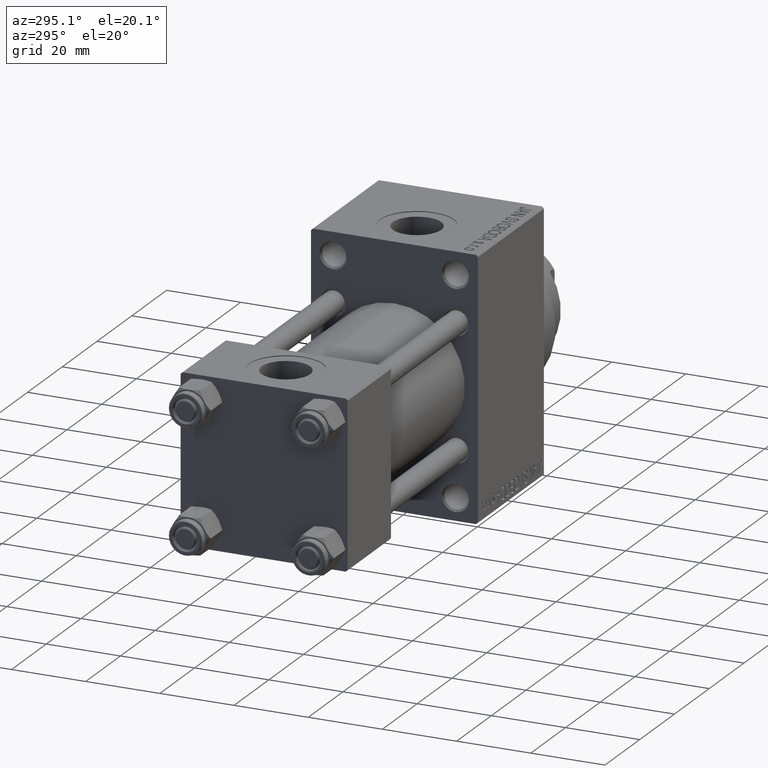
[diagram: clean part render]
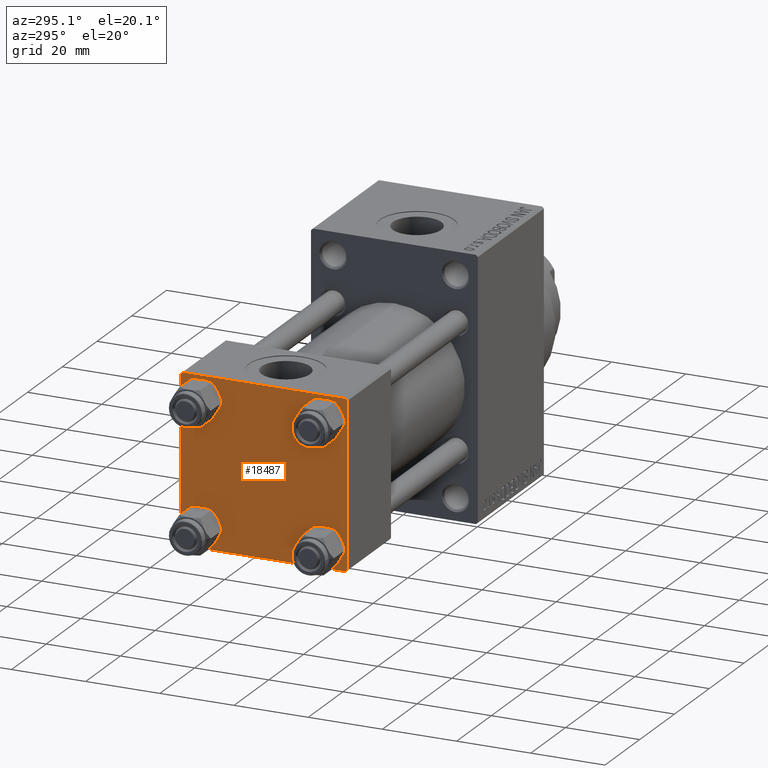
[diagram: same view with one face highlighted and labeled with its STEP entity id]
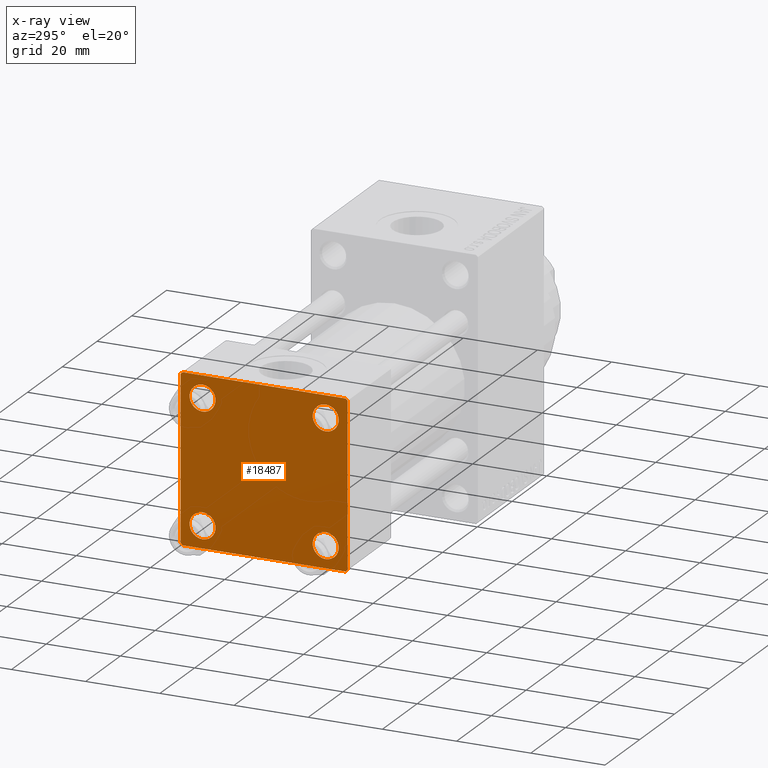
[diagram: x-ray of the same camera — body ghosted, the highlighted face saturated]
A machine part, auxiliary view. The second image highlights one B-rep face of the part: STEP entity #18487.
The next image is the same camera in x-ray: the body ghosted, the highlighted face saturated — about 0% of this face is hidden behind the body in this view.
In plain terms, the highlighted planar face has unit normal (-1, 0, 0).
Its self-contained STEP definition (entity closure, byte-faithful):
#1363 = CIRCLE ( 'NONE', #45556, 3.499999999999996003 ) ;
#1723 = AXIS2_PLACEMENT_3D ( 'NONE', #13886, #35378, #2466 ) ;
#1969 = ORIENTED_EDGE ( 'NONE', *, *, #27444, .T. ) ;
#2466 = DIRECTION ( 'NONE',  ( 0.000000000000000000, 0.000000000000000000, 1.000000000000000000 ) ) ;
#2595 = VECTOR ( 'NONE', #19916, 1000.000000000000000 ) ;
#2858 = CIRCLE ( 'NONE', #45528, 3.499999999999996003 ) ;
#4240 = CARTESIAN_POINT ( 'NONE',  ( 0.000000000000000000, 16.59999999999999787, 16.60000000000000497 ) ) ;
#4969 = DIRECTION ( 'NONE',  ( 1.000000000000000000, -0.000000000000000000, 0.000000000000000000 ) ) ;
#5893 = CIRCLE ( 'NONE', #30258, 3.499999999999996003 ) ;
#6196 = CARTESIAN_POINT ( 'NONE',  ( 0.000000000000000000, -16.59999999999999076, -20.10000000000000497 ) ) ;
#7725 = DIRECTION ( 'NONE',  ( -0.000000000000000000, -0.7071067811865426878, -0.7071067811865524577 ) ) ;
#8655 = ORIENTED_EDGE ( 'NONE', *, *, #15996, .T. ) ;
#8658 = EDGE_LOOP ( 'NONE', ( #24197, #1969, #21310, #18587, #41017, #20699, #34070, #22668 ) ) ;
#8818 = DIRECTION ( 'NONE',  ( -0.000000000000000000, 0.000000000000000000, 1.000000000000000000 ) ) ;
#8847 = DIRECTION ( 'NONE',  ( -0.000000000000000000, 0.7071067811865525687, 0.7071067811865425767 ) ) ;
#9006 = AXIS2_PLACEMENT_3D ( 'NONE', #36716, #4969, #37192 ) ;
#9749 = EDGE_CURVE ( 'NONE', #16798, #46535, #25219, .T. ) ;
#9763 = EDGE_CURVE ( 'NONE', #35653, #19019, #25685, .T. ) ;
#9976 = VERTEX_POINT ( 'NONE', #46859 ) ;
#10048 = EDGE_LOOP ( 'NONE', ( #42894, #14144 ) ) ;
#10093 = CARTESIAN_POINT ( 'NONE',  ( 0.000000000000000000, 21.99999999999999289, 22.50000000000000355 ) ) ;
#10148 = DIRECTION ( 'NONE',  ( 0.000000000000000000, 0.000000000000000000, 1.000000000000000000 ) ) ;
#10182 = CARTESIAN_POINT ( 'NONE',  ( 0.000000000000000000, -21.99999999999997868, 22.50000000000000000 ) ) ;
#10746 = EDGE_CURVE ( 'NONE', #17057, #31395, #5893, .T. ) ;
#11746 = ORIENTED_EDGE ( 'NONE', *, *, #12154, .T. ) ;
#11843 = CARTESIAN_POINT ( 'NONE',  ( 0.000000000000000000, 22.50000000000000000, 22.50000000000000355 ) ) ;
#11993 = CARTESIAN_POINT ( 'NONE',  ( 0.000000000000000000, 22.24999999999999645, 22.24999999999999645 ) ) ;
#12154 = EDGE_CURVE ( 'NONE', #32620, #32560, #1363, .T. ) ;
#12163 = FACE_BOUND ( 'NONE', #19104, .T. ) ;
#12374 = VECTOR ( 'NONE', #7725, 1000.000000000000000 ) ;
#12637 = FACE_BOUND ( 'NONE', #24213, .T. ) ;
#13563 = EDGE_CURVE ( 'NONE', #24534, #13772, #17395, .T. ) ;
#13772 = VERTEX_POINT ( 'NONE', #21853 ) ;
#13774 = CARTESIAN_POINT ( 'NONE',  ( 0.000000000000000000, -21.99999999999997158, -22.50000000000000711 ) ) ;
#13886 = CARTESIAN_POINT ( 'NONE',  ( 0.000000000000000000, 16.59999999999999787, 16.60000000000000497 ) ) ;
#13932 = VERTEX_POINT ( 'NONE', #44076 ) ;
#14144 = ORIENTED_EDGE ( 'NONE', *, *, #26794, .T. ) ;
#14233 = ORIENTED_EDGE ( 'NONE', *, *, #42992, .T. ) ;
#14672 = VERTEX_POINT ( 'NONE', #13774 ) ;
#14889 = CARTESIAN_POINT ( 'NONE',  ( 0.000000000000000000, -16.59999999999999076, -16.60000000000000853 ) ) ;
#15008 = EDGE_CURVE ( 'NONE', #14672, #46535, #23497, .T. ) ;
#15740 = CARTESIAN_POINT ( 'NONE',  ( 0.000000000000000000, 0.000000000000000000, 0.000000000000000000 ) ) ;
#15954 = CIRCLE ( 'NONE', #33501, 3.499999999999996003 ) ;
#15996 = EDGE_CURVE ( 'NONE', #13772, #24534, #15954, .T. ) ;
#16133 = DIRECTION ( 'NONE',  ( 0.000000000000000000, 0.000000000000000000, 1.000000000000000000 ) ) ;
#16342 = CARTESIAN_POINT ( 'NONE',  ( 0.000000000000000000, -22.25000000000014566, -22.24999999999984013 ) ) ;
#16623 = CARTESIAN_POINT ( 'NONE',  ( 0.000000000000000000, 16.59999999999999787, 13.10000000000000675 ) ) ;
#16640 = CARTESIAN_POINT ( 'NONE',  ( 0.000000000000000000, 22.25000000000014566, -22.24999999999984013 ) ) ;
#16798 = VERTEX_POINT ( 'NONE', #21698 ) ;
#17057 = VERTEX_POINT ( 'NONE', #39091 ) ;
#17395 = CIRCLE ( 'NONE', #9006, 3.499999999999996003 ) ;
#17764 = DIRECTION ( 'NONE',  ( 1.000000000000000000, -0.000000000000000000, 0.000000000000000000 ) ) ;
#18487 = ADVANCED_FACE ( 'NONE', ( #12637, #12163, #34110, #45111, #27178 ), #41759, .T. ) ;
#18587 = ORIENTED_EDGE ( 'NONE', *, *, #15008, .T. ) ;
#18693 = DIRECTION ( 'NONE',  ( 0.000000000000000000, 0.000000000000000000, 1.000000000000000000 ) ) ;
#18768 = DIRECTION ( 'NONE',  ( 0.000000000000000000, 0.000000000000000000, 1.000000000000000000 ) ) ;
#19019 = VERTEX_POINT ( 'NONE', #10182 ) ;
#19104 = EDGE_LOOP ( 'NONE', ( #43146, #38065 ) ) ;
#19916 = DIRECTION ( 'NONE',  ( 0.000000000000000000, -1.000000000000000000, -2.312964634635742957E-16 ) ) ;
#19937 = CARTESIAN_POINT ( 'NONE',  ( 0.000000000000000000, -16.59999999999999076, -16.60000000000000853 ) ) ;
#20160 = VECTOR ( 'NONE', #35901, 1000.000000000000000 ) ;
#20488 = VECTOR ( 'NONE', #41886, 1000.000000000000000 ) ;
#20699 = ORIENTED_EDGE ( 'NONE', *, *, #46731, .T. ) ;
#20826 = CARTESIAN_POINT ( 'NONE',  ( 0.000000000000000000, -22.50000000000000000, -21.99999999999997158 ) ) ;
#21075 = VECTOR ( 'NONE', #40726, 1000.000000000000000 ) ;
#21310 = ORIENTED_EDGE ( 'NONE', *, *, #34360, .T. ) ;
#21698 = CARTESIAN_POINT ( 'NONE',  ( 0.000000000000000000, -22.50000000000000000, 22.00000000000000000 ) ) ;
#21853 = CARTESIAN_POINT ( 'NONE',  ( 0.000000000000000000, -16.59999999999999076, 20.10000000000000853 ) ) ;
#22668 = ORIENTED_EDGE ( 'NONE', *, *, #26650, .T. ) ;
#22796 = CARTESIAN_POINT ( 'NONE',  ( 0.000000000000000000, 16.59999999999999787, -13.10000000000000675 ) ) ;
#23497 = LINE ( 'NONE', #16342, #20488 ) ;
#24197 = ORIENTED_EDGE ( 'NONE', *, *, #32792, .T. ) ;
#24213 = EDGE_LOOP ( 'NONE', ( #8655, #39913 ) ) ;
#24228 = EDGE_CURVE ( 'NONE', #45102, #41725, #38204, .T. ) ;
#24425 = CARTESIAN_POINT ( 'NONE',  ( 0.000000000000000000, -16.59999999999999076, 13.10000000000001030 ) ) ;
#24534 = VERTEX_POINT ( 'NONE', #24425 ) ;
#25219 = LINE ( 'NONE', #43614, #31776 ) ;
#25685 = LINE ( 'NONE', #11843, #21075 ) ;
#26505 = CARTESIAN_POINT ( 'NONE',  ( -0.000000000000000000, -22.24999999999984013, 22.25000000000015277 ) ) ;
#26650 = EDGE_CURVE ( 'NONE', #35653, #13932, #44705, .T. ) ;
#26794 = EDGE_CURVE ( 'NONE', #31395, #17057, #26830, .T. ) ;
#26830 = CIRCLE ( 'NONE', #1723, 3.499999999999996003 ) ;
#26995 = CARTESIAN_POINT ( 'NONE',  ( 0.000000000000000000, 16.59999999999999787, -16.60000000000000497 ) ) ;
#27115 = DIRECTION ( 'NONE',  ( 1.000000000000000000, -0.000000000000000000, 0.000000000000000000 ) ) ;
#27178 = FACE_OUTER_BOUND ( 'NONE', #8658, .T. ) ;
#27201 = VECTOR ( 'NONE', #8847, 999.9999999999998863 ) ;
#27444 = EDGE_CURVE ( 'NONE', #37778, #9976, #34773, .T. ) ;
#29963 = LINE ( 'NONE', #37607, #2595 ) ;
#30258 = AXIS2_PLACEMENT_3D ( 'NONE', #4240, #30446, #18768 ) ;
#30446 = DIRECTION ( 'NONE',  ( 1.000000000000000000, -0.000000000000000000, 0.000000000000000000 ) ) ;
#30759 = AXIS2_PLACEMENT_3D ( 'NONE', #14889, #37317, #18693 ) ;
#30800 = LINE ( 'NONE', #26505, #27201 ) ;
#30938 = DIRECTION ( 'NONE',  ( 0.000000000000000000, 0.000000000000000000, 1.000000000000000000 ) ) ;
#31395 = VERTEX_POINT ( 'NONE', #16623 ) ;
#31776 = VECTOR ( 'NONE', #40017, 1000.000000000000000 ) ;
#32138 = AXIS2_PLACEMENT_3D ( 'NONE', #19937, #45276, #16133 ) ;
#32544 = CARTESIAN_POINT ( 'NONE',  ( 0.000000000000000000, 22.50000000000000000, 22.50000000000000355 ) ) ;
#32560 = VERTEX_POINT ( 'NONE', #40935 ) ;
#32620 = VERTEX_POINT ( 'NONE', #22796 ) ;
#32792 = EDGE_CURVE ( 'NONE', #13932, #37778, #39484, .T. ) ;
#33501 = AXIS2_PLACEMENT_3D ( 'NONE', #43088, #17764, #10148 ) ;
#33703 = DIRECTION ( 'NONE',  ( 0.000000000000000000, 0.7071067811865474617, -0.7071067811865474617 ) ) ;
#33858 = EDGE_CURVE ( 'NONE', #41725, #45102, #46805, .T. ) ;
#34070 = ORIENTED_EDGE ( 'NONE', *, *, #9763, .F. ) ;
#34110 = FACE_BOUND ( 'NONE', #42461, .T. ) ;
#34282 = CARTESIAN_POINT ( 'NONE',  ( 0.000000000000000000, 16.59999999999999787, -16.60000000000000497 ) ) ;
#34360 = EDGE_CURVE ( 'NONE', #9976, #14672, #29963, .T. ) ;
#34773 = LINE ( 'NONE', #16640, #12374 ) ;
#35085 = AXIS2_PLACEMENT_3D ( 'NONE', #15740, #41523, #8818 ) ;
#35378 = DIRECTION ( 'NONE',  ( 1.000000000000000000, -0.000000000000000000, 0.000000000000000000 ) ) ;
#35653 = VERTEX_POINT ( 'NONE', #10093 ) ;
#35901 = DIRECTION ( 'NONE',  ( 0.000000000000000000, 0.000000000000000000, -1.000000000000000000 ) ) ;
#36716 = CARTESIAN_POINT ( 'NONE',  ( 0.000000000000000000, -16.59999999999999076, 16.60000000000000853 ) ) ;
#37192 = DIRECTION ( 'NONE',  ( 0.000000000000000000, 0.000000000000000000, 1.000000000000000000 ) ) ;
#37317 = DIRECTION ( 'NONE',  ( 1.000000000000000000, -0.000000000000000000, 0.000000000000000000 ) ) ;
#37607 = CARTESIAN_POINT ( 'NONE',  ( 0.000000000000000000, 22.50000000000000000, -22.49999999999999645 ) ) ;
#37756 = DIRECTION ( 'NONE',  ( 1.000000000000000000, -0.000000000000000000, 0.000000000000000000 ) ) ;
#37778 = VERTEX_POINT ( 'NONE', #38770 ) ;
#38065 = ORIENTED_EDGE ( 'NONE', *, *, #33858, .T. ) ;
#38204 = CIRCLE ( 'NONE', #32138, 3.499999999999996003 ) ;
#38770 = CARTESIAN_POINT ( 'NONE',  ( 0.000000000000000000, 22.50000000000000000, -21.99999999999996803 ) ) ;
#39091 = CARTESIAN_POINT ( 'NONE',  ( 0.000000000000000000, 16.59999999999999787, 20.10000000000000142 ) ) ;
#39484 = LINE ( 'NONE', #32544, #20160 ) ;
#39913 = ORIENTED_EDGE ( 'NONE', *, *, #13563, .T. ) ;
#40017 = DIRECTION ( 'NONE',  ( 0.000000000000000000, 0.000000000000000000, -1.000000000000000000 ) ) ;
#40717 = CARTESIAN_POINT ( 'NONE',  ( 0.000000000000000000, -16.59999999999999076, -13.10000000000001030 ) ) ;
#40726 = DIRECTION ( 'NONE',  ( 0.000000000000000000, -1.000000000000000000, -7.709882115452476934E-17 ) ) ;
#40935 = CARTESIAN_POINT ( 'NONE',  ( 0.000000000000000000, 16.59999999999999787, -20.10000000000000142 ) ) ;
#41017 = ORIENTED_EDGE ( 'NONE', *, *, #9749, .F. ) ;
#41523 = DIRECTION ( 'NONE',  ( -1.000000000000000000, 0.000000000000000000, -0.000000000000000000 ) ) ;
#41725 = VERTEX_POINT ( 'NONE', #6196 ) ;
#41759 = PLANE ( 'NONE',  #35085 ) ;
#41886 = DIRECTION ( 'NONE',  ( 0.000000000000000000, -0.7071067811865426878, 0.7071067811865524577 ) ) ;
#42461 = EDGE_LOOP ( 'NONE', ( #11746, #14233 ) ) ;
#42894 = ORIENTED_EDGE ( 'NONE', *, *, #10746, .T. ) ;
#42992 = EDGE_CURVE ( 'NONE', #32560, #32620, #2858, .T. ) ;
#43088 = CARTESIAN_POINT ( 'NONE',  ( 0.000000000000000000, -16.59999999999999076, 16.60000000000000853 ) ) ;
#43146 = ORIENTED_EDGE ( 'NONE', *, *, #24228, .T. ) ;
#43614 = CARTESIAN_POINT ( 'NONE',  ( 0.000000000000000000, -22.50000000000000000, 22.50000000000000000 ) ) ;
#44076 = CARTESIAN_POINT ( 'NONE',  ( 0.000000000000000000, 22.50000000000000000, 21.99999999999999645 ) ) ;
#44467 = DIRECTION ( 'NONE',  ( 0.000000000000000000, 0.000000000000000000, 1.000000000000000000 ) ) ;
#44705 = LINE ( 'NONE', #11993, #45155 ) ;
#45102 = VERTEX_POINT ( 'NONE', #40717 ) ;
#45111 = FACE_BOUND ( 'NONE', #10048, .T. ) ;
#45155 = VECTOR ( 'NONE', #33703, 1000.000000000000114 ) ;
#45276 = DIRECTION ( 'NONE',  ( 1.000000000000000000, -0.000000000000000000, 0.000000000000000000 ) ) ;
#45528 = AXIS2_PLACEMENT_3D ( 'NONE', #34282, #27115, #30938 ) ;
#45556 = AXIS2_PLACEMENT_3D ( 'NONE', #26995, #37756, #44467 ) ;
#46535 = VERTEX_POINT ( 'NONE', #20826 ) ;
#46731 = EDGE_CURVE ( 'NONE', #16798, #19019, #30800, .T. ) ;
#46805 = CIRCLE ( 'NONE', #30759, 3.499999999999996003 ) ;
#46859 = CARTESIAN_POINT ( 'NONE',  ( 0.000000000000000000, 21.99999999999999289, -22.49999999999999645 ) ) ;